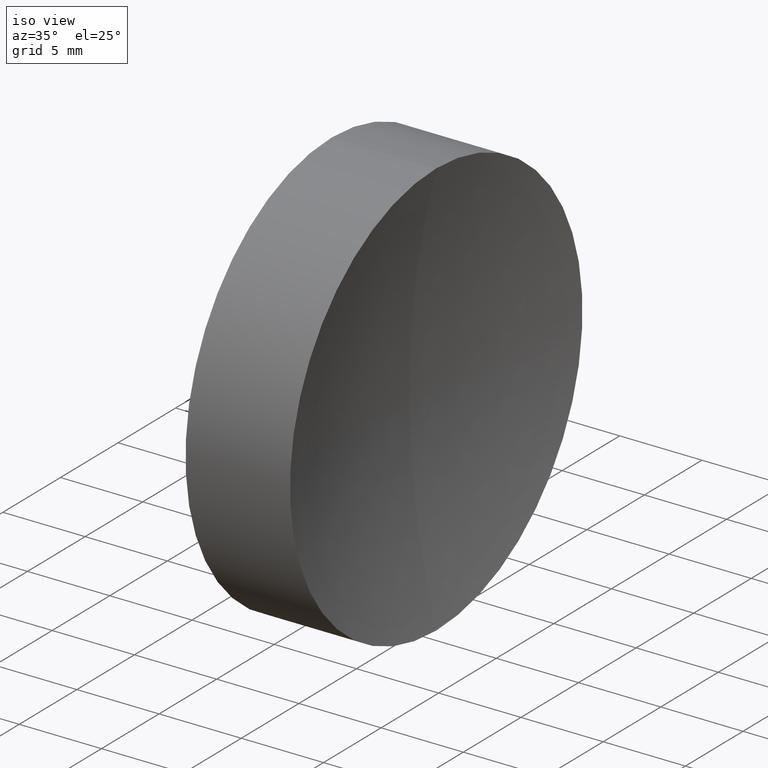
[diagram: clean part render]
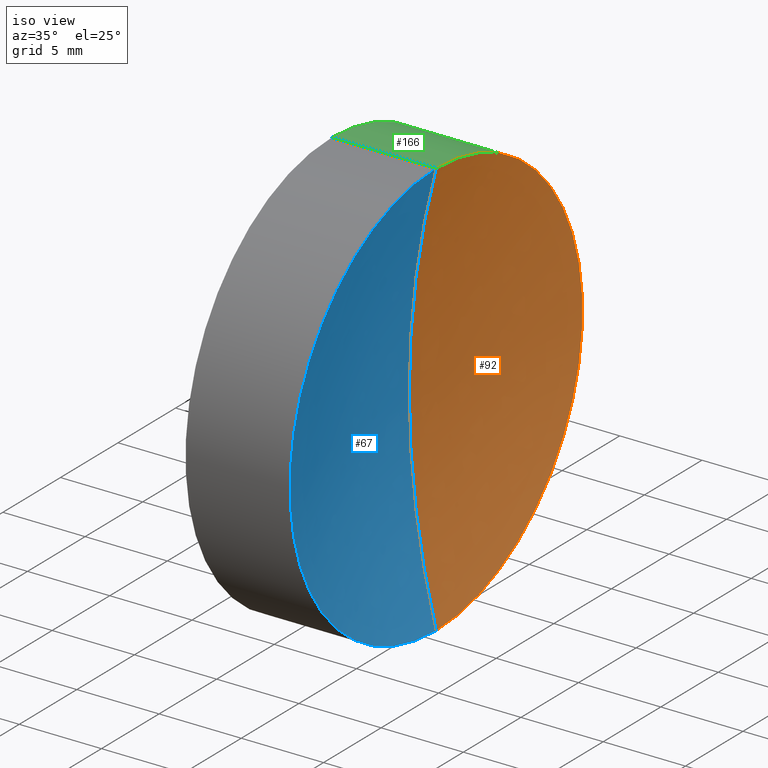
[diagram: same view with three faces highlighted in distinct colors, each labeled with its STEP entity id]
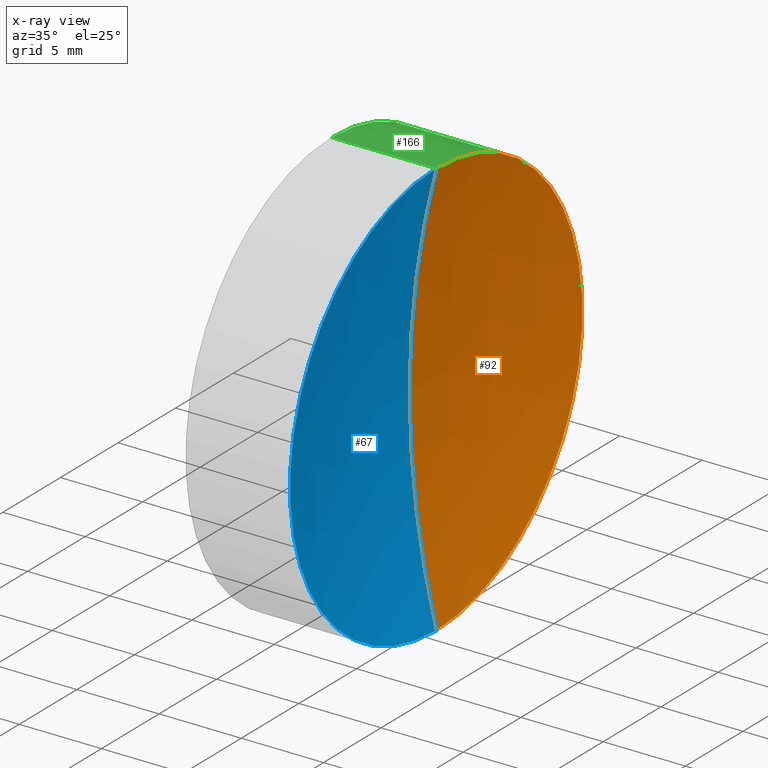
[diagram: x-ray of the same camera — body ghosted, the three highlighted faces saturated]
A machine part, iso view with three faces highlighted in distinct colors.
The next image is the same camera in x-ray (body ghosted, the three faces saturated) — at least one of them is partly hidden behind the body in this view.
Their STEP definitions:

[orange] entity #92 — the highlighted spherical surface has radius 50 mm.
#2 = FACE_OUTER_BOUND ( 'NONE', #103, .T. ) ;
#5 = AXIS2_PLACEMENT_3D ( 'NONE', #126, #27, #9 ) ;
#9 = DIRECTION ( 'NONE',  ( 0.0000000000000000000, -1.224646799147353200E-016, 1.000000000000000000 ) ) ;
#19 = DIRECTION ( 'NONE',  ( 0.0000000000000000000, 0.0000000000000000000, 1.000000000000000000 ) ) ;
#27 = DIRECTION ( 'NONE',  ( -0.0000000000000000000, 1.000000000000000000, 1.224646799147353200E-016 ) ) ;
#28 = CIRCLE ( 'NONE', #5, 49.99999999999998600 ) ;
#32 = ORIENTED_EDGE ( 'NONE', *, *, #131, .F. ) ;
#38 = CARTESIAN_POINT ( 'NONE',  ( 6.349789082345805200, 1.555301434917142000E-015, -12.70000000000002800 ) ) ;
#44 = ORIENTED_EDGE ( 'NONE', *, *, #139, .T. ) ;
#45 = AXIS2_PLACEMENT_3D ( 'NONE', #144, #157, #150 ) ;
#64 = SPHERICAL_SURFACE ( 'NONE', #106, 49.99999999999998600 ) ;
#65 = CARTESIAN_POINT ( 'NONE',  ( 54.70999999999998000, 0.0000000000000000000, 0.0000000000000000000 ) ) ;
#73 = EDGE_CURVE ( 'NONE', #155, #104, #127, .T. ) ;
#75 = AXIS2_PLACEMENT_3D ( 'NONE', #85, #132, #19 ) ;
#77 = DIRECTION ( 'NONE',  ( 0.0000000000000000000, 0.0000000000000000000, 1.000000000000000000 ) ) ;
#85 = CARTESIAN_POINT ( 'NONE',  ( 6.349789082345805200, 0.0000000000000000000, 0.0000000000000000000 ) ) ;
#89 = CIRCLE ( 'NONE', #45, 49.99999999999998600 ) ;
#92 = ADVANCED_FACE ( 'NONE', ( #2 ), #64, .F. ) ;
#100 = DIRECTION ( 'NONE',  ( 0.0000000000000000000, 1.000000000000000000, 0.0000000000000000000 ) ) ;
#103 = EDGE_LOOP ( 'NONE', ( #32, #108, #44 ) ) ;
#104 = VERTEX_POINT ( 'NONE', #38 ) ;
#106 = AXIS2_PLACEMENT_3D ( 'NONE', #65, #100, #77 ) ;
#108 = ORIENTED_EDGE ( 'NONE', *, *, #73, .F. ) ;
#114 = CARTESIAN_POINT ( 'NONE',  ( 4.709999999999992000, 0.0000000000000000000, 3.061616997868382300E-015 ) ) ;
#126 = CARTESIAN_POINT ( 'NONE',  ( 54.70999999999998000, 0.0000000000000000000, 0.0000000000000000000 ) ) ;
#127 = CIRCLE ( 'NONE', #75, 12.70000000000003100 ) ;
#131 = EDGE_CURVE ( 'NONE', #104, #162, #28, .T. ) ;
#132 = DIRECTION ( 'NONE',  ( -1.000000000000000000, -0.0000000000000000000, -0.0000000000000000000 ) ) ;
#139 = EDGE_CURVE ( 'NONE', #155, #162, #89, .T. ) ;
#144 = CARTESIAN_POINT ( 'NONE',  ( 54.70999999999998000, 0.0000000000000000000, 0.0000000000000000000 ) ) ;
#150 = DIRECTION ( 'NONE',  ( 0.0000000000000000000, 0.0000000000000000000, -1.000000000000000000 ) ) ;
#155 = VERTEX_POINT ( 'NONE', #161 ) ;
#157 = DIRECTION ( 'NONE',  ( 0.0000000000000000000, -1.000000000000000000, 0.0000000000000000000 ) ) ;
#161 = CARTESIAN_POINT ( 'NONE',  ( 6.349789082345805200, 0.0000000000000000000, 12.70000000000002800 ) ) ;
#162 = VERTEX_POINT ( 'NONE', #114 ) ;

[blue] entity #67 — the highlighted spherical surface has radius 50 mm.
#5 = AXIS2_PLACEMENT_3D ( 'NONE', #126, #27, #9 ) ;
#9 = DIRECTION ( 'NONE',  ( 0.0000000000000000000, -1.224646799147353200E-016, 1.000000000000000000 ) ) ;
#21 = CARTESIAN_POINT ( 'NONE',  ( 54.70999999999998000, 0.0000000000000000000, 0.0000000000000000000 ) ) ;
#24 = DIRECTION ( 'NONE',  ( 0.0000000000000000000, 0.0000000000000000000, 1.000000000000000000 ) ) ;
#27 = DIRECTION ( 'NONE',  ( -0.0000000000000000000, 1.000000000000000000, 1.224646799147353200E-016 ) ) ;
#28 = CIRCLE ( 'NONE', #5, 49.99999999999998600 ) ;
#33 = AXIS2_PLACEMENT_3D ( 'NONE', #21, #41, #59 ) ;
#37 = EDGE_LOOP ( 'NONE', ( #134, #87, #90 ) ) ;
#38 = CARTESIAN_POINT ( 'NONE',  ( 6.349789082345805200, 1.555301434917142000E-015, -12.70000000000002800 ) ) ;
#41 = DIRECTION ( 'NONE',  ( 0.0000000000000000000, 1.000000000000000000, 0.0000000000000000000 ) ) ;
#43 = EDGE_CURVE ( 'NONE', #104, #155, #79, .T. ) ;
#45 = AXIS2_PLACEMENT_3D ( 'NONE', #144, #157, #150 ) ;
#49 = DIRECTION ( 'NONE',  ( -1.000000000000000000, -0.0000000000000000000, -0.0000000000000000000 ) ) ;
#59 = DIRECTION ( 'NONE',  ( 0.0000000000000000000, 0.0000000000000000000, 1.000000000000000000 ) ) ;
#67 = ADVANCED_FACE ( 'NONE', ( #130 ), #96, .F. ) ;
#79 = CIRCLE ( 'NONE', #98, 12.70000000000003100 ) ;
#87 = ORIENTED_EDGE ( 'NONE', *, *, #131, .T. ) ;
#89 = CIRCLE ( 'NONE', #45, 49.99999999999998600 ) ;
#90 = ORIENTED_EDGE ( 'NONE', *, *, #139, .F. ) ;
#96 = SPHERICAL_SURFACE ( 'NONE', #33, 49.99999999999998600 ) ;
#98 = AXIS2_PLACEMENT_3D ( 'NONE', #122, #49, #24 ) ;
#104 = VERTEX_POINT ( 'NONE', #38 ) ;
#114 = CARTESIAN_POINT ( 'NONE',  ( 4.709999999999992000, 0.0000000000000000000, 3.061616997868382300E-015 ) ) ;
#122 = CARTESIAN_POINT ( 'NONE',  ( 6.349789082345805200, 0.0000000000000000000, 0.0000000000000000000 ) ) ;
#126 = CARTESIAN_POINT ( 'NONE',  ( 54.70999999999998000, 0.0000000000000000000, 0.0000000000000000000 ) ) ;
#130 = FACE_OUTER_BOUND ( 'NONE', #37, .T. ) ;
#131 = EDGE_CURVE ( 'NONE', #104, #162, #28, .T. ) ;
#134 = ORIENTED_EDGE ( 'NONE', *, *, #43, .F. ) ;
#139 = EDGE_CURVE ( 'NONE', #155, #162, #89, .T. ) ;
#144 = CARTESIAN_POINT ( 'NONE',  ( 54.70999999999998000, 0.0000000000000000000, 0.0000000000000000000 ) ) ;
#150 = DIRECTION ( 'NONE',  ( 0.0000000000000000000, 0.0000000000000000000, -1.000000000000000000 ) ) ;
#155 = VERTEX_POINT ( 'NONE', #161 ) ;
#157 = DIRECTION ( 'NONE',  ( 0.0000000000000000000, -1.000000000000000000, 0.0000000000000000000 ) ) ;
#161 = CARTESIAN_POINT ( 'NONE',  ( 6.349789082345805200, 0.0000000000000000000, 12.70000000000002800 ) ) ;
#162 = VERTEX_POINT ( 'NONE', #114 ) ;

[green] entity #166 — the highlighted cylindrical surface (partial cylindrical patch) has radius 12.7 mm, axis along (-1, -0, -0).
#3 = DIRECTION ( 'NONE',  ( -1.000000000000000000, -0.0000000000000000000, -0.0000000000000000000 ) ) ;
#8 = CARTESIAN_POINT ( 'NONE',  ( 0.0000000000000000000, 1.555301434917140400E-015, -12.70000000000001500 ) ) ;
#10 = DIRECTION ( 'NONE',  ( -1.000000000000000000, -0.0000000000000000000, -0.0000000000000000000 ) ) ;
#16 = CARTESIAN_POINT ( 'NONE',  ( 0.0000000000000000000, 0.0000000000000000000, 12.70000000000001500 ) ) ;
#19 = DIRECTION ( 'NONE',  ( 0.0000000000000000000, 0.0000000000000000000, 1.000000000000000000 ) ) ;
#22 = CYLINDRICAL_SURFACE ( 'NONE', #35, 12.70000000000001500 ) ;
#25 = LINE ( 'NONE', #8, #50 ) ;
#30 = EDGE_CURVE ( 'NONE', #104, #76, #25, .T. ) ;
#35 = AXIS2_PLACEMENT_3D ( 'NONE', #119, #3, #147 ) ;
#36 = VECTOR ( 'NONE', #136, 1000.000000000000000 ) ;
#38 = CARTESIAN_POINT ( 'NONE',  ( 6.349789082345805200, 1.555301434917142000E-015, -12.70000000000002800 ) ) ;
#50 = VECTOR ( 'NONE', #71, 1000.000000000000000 ) ;
#55 = EDGE_LOOP ( 'NONE', ( #125, #137, #116, #82 ) ) ;
#56 = FACE_OUTER_BOUND ( 'NONE', #55, .T. ) ;
#58 = LINE ( 'NONE', #16, #36 ) ;
#61 = VERTEX_POINT ( 'NONE', #97 ) ;
#71 = DIRECTION ( 'NONE',  ( -1.000000000000000000, -0.0000000000000000000, -0.0000000000000000000 ) ) ;
#73 = EDGE_CURVE ( 'NONE', #155, #104, #127, .T. ) ;
#75 = AXIS2_PLACEMENT_3D ( 'NONE', #85, #132, #19 ) ;
#76 = VERTEX_POINT ( 'NONE', #143 ) ;
#81 = AXIS2_PLACEMENT_3D ( 'NONE', #121, #10, #94 ) ;
#82 = ORIENTED_EDGE ( 'NONE', *, *, #123, .F. ) ;
#85 = CARTESIAN_POINT ( 'NONE',  ( 6.349789082345805200, 0.0000000000000000000, 0.0000000000000000000 ) ) ;
#94 = DIRECTION ( 'NONE',  ( 0.0000000000000000000, 0.0000000000000000000, 1.000000000000000000 ) ) ;
#97 = CARTESIAN_POINT ( 'NONE',  ( 0.0000000000000000000, 0.0000000000000000000, 12.69999999999999900 ) ) ;
#104 = VERTEX_POINT ( 'NONE', #38 ) ;
#116 = ORIENTED_EDGE ( 'NONE', *, *, #138, .F. ) ;
#119 = CARTESIAN_POINT ( 'NONE',  ( 0.0000000000000000000, 0.0000000000000000000, 0.0000000000000000000 ) ) ;
#120 = CIRCLE ( 'NONE', #81, 12.69999999999999900 ) ;
#121 = CARTESIAN_POINT ( 'NONE',  ( 0.0000000000000000000, 0.0000000000000000000, 0.0000000000000000000 ) ) ;
#123 = EDGE_CURVE ( 'NONE', #155, #61, #58, .T. ) ;
#125 = ORIENTED_EDGE ( 'NONE', *, *, #73, .T. ) ;
#127 = CIRCLE ( 'NONE', #75, 12.70000000000003100 ) ;
#132 = DIRECTION ( 'NONE',  ( -1.000000000000000000, -0.0000000000000000000, -0.0000000000000000000 ) ) ;
#136 = DIRECTION ( 'NONE',  ( -1.000000000000000000, -0.0000000000000000000, -0.0000000000000000000 ) ) ;
#137 = ORIENTED_EDGE ( 'NONE', *, *, #30, .T. ) ;
#138 = EDGE_CURVE ( 'NONE', #61, #76, #120, .T. ) ;
#143 = CARTESIAN_POINT ( 'NONE',  ( 0.0000000000000000000, 1.555301434917139600E-015, -12.69999999999999900 ) ) ;
#147 = DIRECTION ( 'NONE',  ( 0.0000000000000000000, 0.0000000000000000000, 1.000000000000000000 ) ) ;
#155 = VERTEX_POINT ( 'NONE', #161 ) ;
#161 = CARTESIAN_POINT ( 'NONE',  ( 6.349789082345805200, 0.0000000000000000000, 12.70000000000002800 ) ) ;
#166 = ADVANCED_FACE ( 'NONE', ( #56 ), #22, .T. ) ;